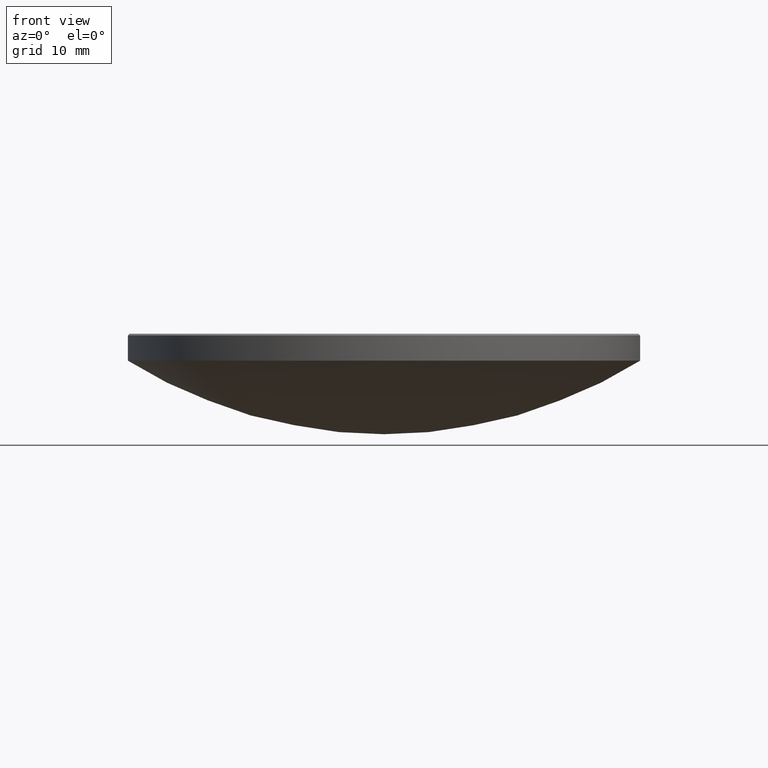
[diagram: clean part render]
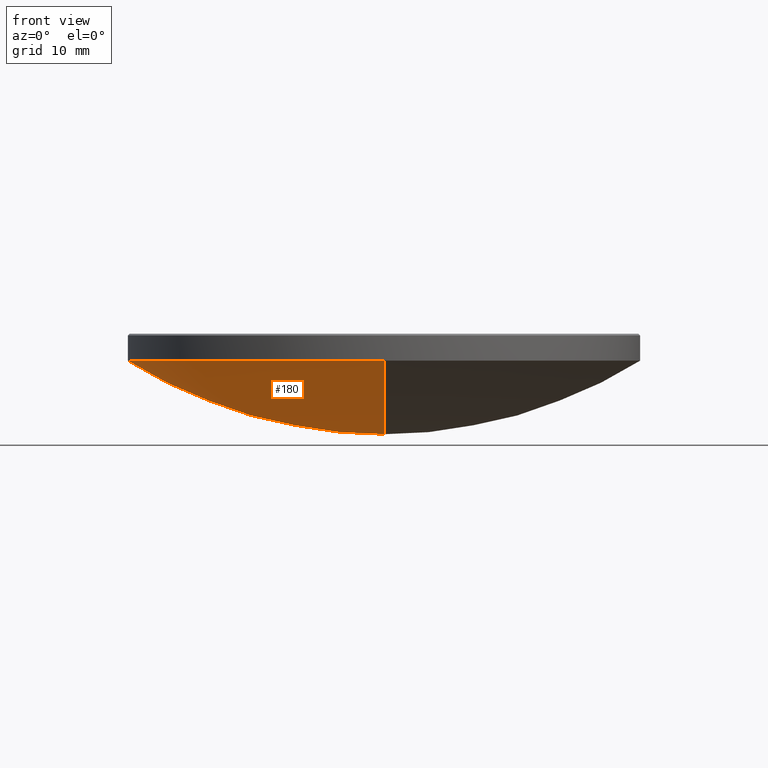
[diagram: same view with one face highlighted and labeled with its STEP entity id]
A machine part, front view. The second image highlights one B-rep face of the part: STEP entity #180.
In plain terms, the highlighted spherical surface has radius 47.87 mm.
Its self-contained STEP definition (entity closure, byte-faithful):
#8 = CARTESIAN_POINT ( 'NONE',  ( 0.000000000000000000, 0.000000000000000000, 13.00000000000000000 ) ) ;
#14 = VERTEX_POINT ( 'NONE', #167 ) ;
#17 = ORIENTED_EDGE ( 'NONE', *, *, #61, .T. ) ;
#21 = VERTEX_POINT ( 'NONE', #211 ) ;
#32 = CIRCLE ( 'NONE', #172, 47.86999999999999744 ) ;
#34 = CARTESIAN_POINT ( 'NONE',  ( 0.000000000000000000, 0.000000000000000000, 53.57557023628872628 ) ) ;
#42 = AXIS2_PLACEMENT_3D ( 'NONE', #195, #216, #173 ) ;
#45 = DIRECTION ( 'NONE',  ( -1.000000000000000000, 1.224646799147353207E-16, 0.000000000000000000 ) ) ;
#50 = EDGE_LOOP ( 'NONE', ( #163, #17, #143, #281 ) ) ;
#61 = EDGE_CURVE ( 'NONE', #134, #21, #32, .T. ) ;
#65 = CARTESIAN_POINT ( 'NONE',  ( 0.000000000000000000, 25.39999999999999858, 12.99999999999999822 ) ) ;
#69 = DIRECTION ( 'NONE',  ( 1.000000000000000000, -0.000000000000000000, 0.000000000000000000 ) ) ;
#75 = CIRCLE ( 'NONE', #234, 47.86999999999999744 ) ;
#89 = DIRECTION ( 'NONE',  ( -1.224646799147353207E-16, -1.000000000000000000, 0.000000000000000000 ) ) ;
#92 = DIRECTION ( 'NONE',  ( 1.000000000000000000, 0.000000000000000000, 0.000000000000000000 ) ) ;
#106 = EDGE_CURVE ( 'NONE', #14, #21, #108, .T. ) ;
#108 = CIRCLE ( 'NONE', #42, 25.39999999999999503 ) ;
#113 = DIRECTION ( 'NONE',  ( -1.000000000000000000, 0.000000000000000000, 0.000000000000000000 ) ) ;
#119 = VERTEX_POINT ( 'NONE', #65 ) ;
#134 = VERTEX_POINT ( 'NONE', #237 ) ;
#135 = CARTESIAN_POINT ( 'NONE',  ( 0.000000000000000000, 0.000000000000000000, 53.57557023628872628 ) ) ;
#143 = ORIENTED_EDGE ( 'NONE', *, *, #106, .F. ) ;
#163 = ORIENTED_EDGE ( 'NONE', *, *, #275, .F. ) ;
#167 = CARTESIAN_POINT ( 'NONE',  ( -25.39999999999999503, 0.000000000000000000, 13.00000000000000000 ) ) ;
#172 = AXIS2_PLACEMENT_3D ( 'NONE', #176, #45, #89 ) ;
#173 = DIRECTION ( 'NONE',  ( 1.000000000000000000, 0.000000000000000000, 0.000000000000000000 ) ) ;
#176 = CARTESIAN_POINT ( 'NONE',  ( 0.000000000000000000, 0.000000000000000000, 53.57557023628872628 ) ) ;
#180 = ADVANCED_FACE ( 'NONE', ( #222 ), #248, .T. ) ;
#183 = AXIS2_PLACEMENT_3D ( 'NONE', #135, #113, #274 ) ;
#195 = CARTESIAN_POINT ( 'NONE',  ( 0.000000000000000000, 0.000000000000000000, 13.00000000000000000 ) ) ;
#211 = CARTESIAN_POINT ( 'NONE',  ( -3.110602869834276865E-15, -25.39999999999999858, 12.99999999999999822 ) ) ;
#215 = EDGE_CURVE ( 'NONE', #119, #14, #266, .T. ) ;
#216 = DIRECTION ( 'NONE',  ( -0.000000000000000000, -0.000000000000000000, 1.000000000000000000 ) ) ;
#217 = AXIS2_PLACEMENT_3D ( 'NONE', #8, #269, #92 ) ;
#222 = FACE_OUTER_BOUND ( 'NONE', #50, .T. ) ;
#234 = AXIS2_PLACEMENT_3D ( 'NONE', #34, #69, #243 ) ;
#237 = CARTESIAN_POINT ( 'NONE',  ( 0.000000000000000000, 2.931192113759189857E-15, 5.705570236288731500 ) ) ;
#243 = DIRECTION ( 'NONE',  ( 0.000000000000000000, 0.000000000000000000, -1.000000000000000000 ) ) ;
#248 = SPHERICAL_SURFACE ( 'NONE', #183, 47.86999999999999744 ) ;
#266 = CIRCLE ( 'NONE', #217, 25.39999999999999503 ) ;
#269 = DIRECTION ( 'NONE',  ( -0.000000000000000000, -0.000000000000000000, 1.000000000000000000 ) ) ;
#274 = DIRECTION ( 'NONE',  ( 0.000000000000000000, 1.000000000000000000, 0.000000000000000000 ) ) ;
#275 = EDGE_CURVE ( 'NONE', #134, #119, #75, .T. ) ;
#281 = ORIENTED_EDGE ( 'NONE', *, *, #215, .F. ) ;